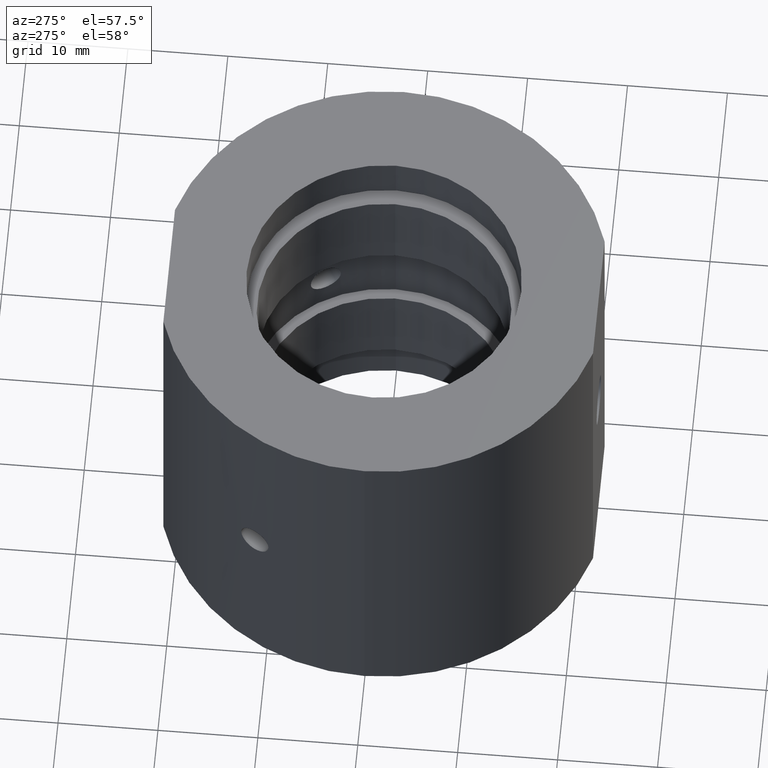
[diagram: clean part render]
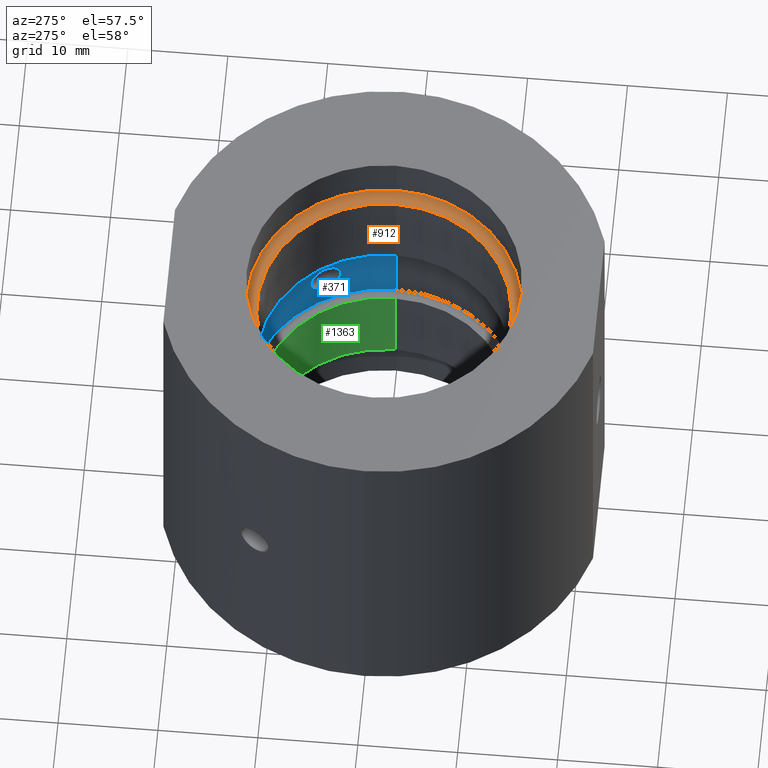
[diagram: same view with three faces highlighted in distinct colors, each labeled with its STEP entity id]
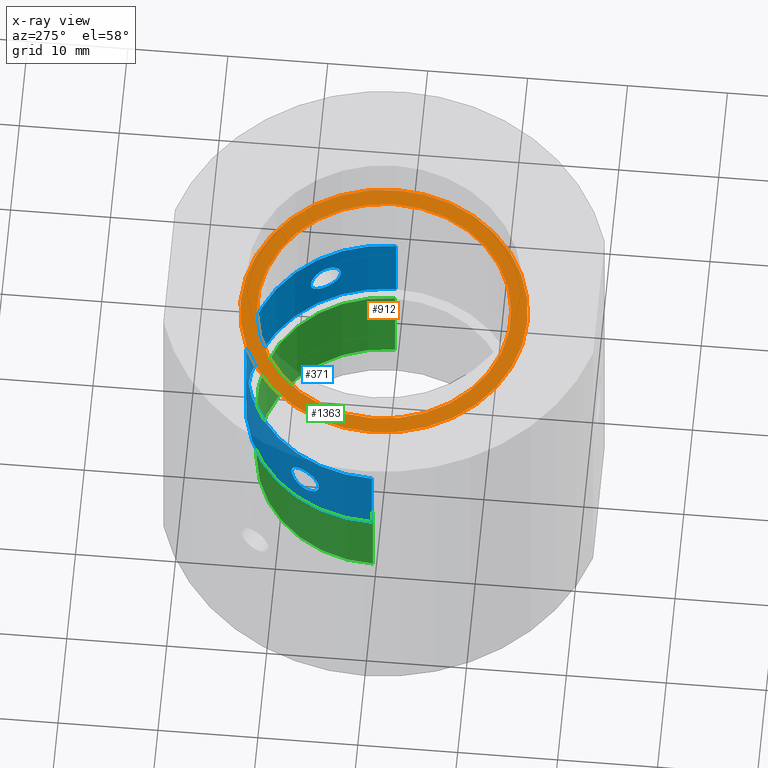
[diagram: x-ray of the same camera — body ghosted, the three highlighted faces saturated]
A machine part, auxiliary view with three faces highlighted in distinct colors.
The next image is the same camera in x-ray (body ghosted, the three faces saturated) — at least one of them is partly hidden behind the body in this view.
Their STEP definitions:

[orange] entity #912 — the highlighted planar face has unit normal (-0, 0, -1).
#20 = FACE_BOUND ( 'NONE', #1256, .T. ) ;
#59 = CARTESIAN_POINT ( 'NONE',  ( 5.564680930534238900E-015, 0.0000000000000000000, 13.49999999999999800 ) ) ;
#73 = CARTESIAN_POINT ( 'NONE',  ( 5.564680930534238900E-015, 0.0000000000000000000, 13.49999999999999800 ) ) ;
#78 = VERTEX_POINT ( 'NONE', #1077 ) ;
#82 = VERTEX_POINT ( 'NONE', #754 ) ;
#166 = CARTESIAN_POINT ( 'NONE',  ( 14.35000000000000700, 1.757368156776452000E-015, 13.49999999999999600 ) ) ;
#293 = DIRECTION ( 'NONE',  ( -1.000000000000000000, 0.0000000000000000000, 1.224646799147350500E-016 ) ) ;
#318 = AXIS2_PLACEMENT_3D ( 'NONE', #332, #1217, #1327 ) ;
#332 = CARTESIAN_POINT ( 'NONE',  ( 5.564680930534238900E-015, 0.0000000000000000000, 13.49999999999999800 ) ) ;
#343 = AXIS2_PLACEMENT_3D ( 'NONE', #964, #1410, #293 ) ;
#385 = EDGE_CURVE ( 'NONE', #1209, #82, #1014, .T. ) ;
#400 = CIRCLE ( 'NONE', #415, 12.69999999999999400 ) ;
#415 = AXIS2_PLACEMENT_3D ( 'NONE', #59, #819, #1165 ) ;
#442 = EDGE_CURVE ( 'NONE', #82, #1209, #1242, .T. ) ;
#471 = ORIENTED_EDGE ( 'NONE', *, *, #876, .T. ) ;
#473 = FACE_OUTER_BOUND ( 'NONE', #475, .T. ) ;
#475 = EDGE_LOOP ( 'NONE', ( #930, #582 ) ) ;
#484 = DIRECTION ( 'NONE',  ( -1.224646799147350500E-016, -0.0000000000000000000, -1.000000000000000000 ) ) ;
#582 = ORIENTED_EDGE ( 'NONE', *, *, #385, .F. ) ;
#695 = VERTEX_POINT ( 'NONE', #1120 ) ;
#713 = DIRECTION ( 'NONE',  ( -1.000000000000000000, 0.0000000000000000000, 1.208866533781746900E-016 ) ) ;
#754 = CARTESIAN_POINT ( 'NONE',  ( -14.34999999999999600, 0.0000000000000000000, 13.50000000000000000 ) ) ;
#819 = DIRECTION ( 'NONE',  ( -1.224646799147350500E-016, -0.0000000000000000000, -1.000000000000000000 ) ) ;
#839 = DIRECTION ( 'NONE',  ( -1.000000000000000000, 0.0000000000000000000, 1.208866533781746900E-016 ) ) ;
#876 = EDGE_CURVE ( 'NONE', #695, #78, #1196, .T. ) ;
#912 = ADVANCED_FACE ( 'NONE', ( #473, #20 ), #1167, .F. ) ;
#930 = ORIENTED_EDGE ( 'NONE', *, *, #442, .F. ) ;
#964 = CARTESIAN_POINT ( 'NONE',  ( 14.35000000000000700, 0.0000000000000000000, 13.49999999999999800 ) ) ;
#1014 = CIRCLE ( 'NONE', #1258, 14.35000000000000100 ) ;
#1059 = CARTESIAN_POINT ( 'NONE',  ( 5.564680930534238900E-015, 0.0000000000000000000, 13.49999999999999800 ) ) ;
#1065 = AXIS2_PLACEMENT_3D ( 'NONE', #73, #1279, #839 ) ;
#1077 = CARTESIAN_POINT ( 'NONE',  ( 12.69999999999999900, 1.555301434917138000E-015, 13.49999999999999600 ) ) ;
#1107 = EDGE_CURVE ( 'NONE', #78, #695, #400, .T. ) ;
#1120 = CARTESIAN_POINT ( 'NONE',  ( -12.69999999999998900, 0.0000000000000000000, 13.50000000000000000 ) ) ;
#1130 = ORIENTED_EDGE ( 'NONE', *, *, #1107, .T. ) ;
#1165 = DIRECTION ( 'NONE',  ( -1.000000000000000000, 0.0000000000000000000, 1.365923996832132100E-016 ) ) ;
#1167 = PLANE ( 'NONE',  #343 ) ;
#1196 = CIRCLE ( 'NONE', #318, 12.69999999999999400 ) ;
#1209 = VERTEX_POINT ( 'NONE', #166 ) ;
#1217 = DIRECTION ( 'NONE',  ( -1.224646799147350500E-016, -0.0000000000000000000, -1.000000000000000000 ) ) ;
#1242 = CIRCLE ( 'NONE', #1065, 14.35000000000000100 ) ;
#1256 = EDGE_LOOP ( 'NONE', ( #471, #1130 ) ) ;
#1258 = AXIS2_PLACEMENT_3D ( 'NONE', #1059, #484, #713 ) ;
#1279 = DIRECTION ( 'NONE',  ( -1.224646799147350500E-016, -0.0000000000000000000, -1.000000000000000000 ) ) ;
#1327 = DIRECTION ( 'NONE',  ( -1.000000000000000000, 0.0000000000000000000, 1.365923996832132100E-016 ) ) ;
#1410 = DIRECTION ( 'NONE',  ( -1.224646799147350500E-016, 0.0000000000000000000, -1.000000000000000000 ) ) ;

[blue] entity #371 — the highlighted cylindrical surface (partial cylindrical patch) has radius 13.8 mm, axis along (-0, -0, -1).
#37 = EDGE_CURVE ( 'NONE', #1011, #1023, #480, .T. ) ;
#43 = CARTESIAN_POINT ( 'NONE',  ( 11.84246082646134500, 7.085708189196815000, -1.639442169646431600 ) ) ;
#58 = ORIENTED_EDGE ( 'NONE', *, *, #670, .F. ) ;
#60 = CARTESIAN_POINT ( 'NONE',  ( -11.73161736998546300, 7.267761988135760900, 1.597104979727878500 ) ) ;
#67 = CARTESIAN_POINT ( 'NONE',  ( 11.41236232505669300, 7.760237835615871700, 1.319010299474441900 ) ) ;
#79 = CARTESIAN_POINT ( 'NONE',  ( -12.69041718609166500, 5.421559890192988900, -0.2181969559783588600 ) ) ;
#81 = CARTESIAN_POINT ( 'NONE',  ( -12.66948912460239300, 5.470328330509072900, 0.4274375880616333400 ) ) ;
#87 = CARTESIAN_POINT ( 'NONE',  ( -11.73151076834093600, 7.267928407362954400, -1.597025805361052700 ) ) ;
#91 = EDGE_CURVE ( 'NONE', #1409, #377, #1337, .T. ) ;
#131 = DIRECTION ( 'NONE',  ( -1.224646799147350500E-016, -0.0000000000000000000, -1.000000000000000000 ) ) ;
#175 = CARTESIAN_POINT ( 'NONE',  ( -11.17119024601776700, 8.102352273911824600, 0.8279945058443860500 ) ) ;
#180 = CARTESIAN_POINT ( 'NONE',  ( -12.60658063396151200, 5.614357607456468300, -0.8317791632924140800 ) ) ;
#185 = CARTESIAN_POINT ( 'NONE',  ( -11.84175227357072800, 7.086897312880872800, 1.639284038825114600 ) ) ;
#188 = CARTESIAN_POINT ( 'NONE',  ( -12.05763370887847700, 6.713017824439285500, -1.639442169646431400 ) ) ;
#189 = EDGE_CURVE ( 'NONE', #814, #1163, #239, .T. ) ;
#204 = CARTESIAN_POINT ( 'NONE',  ( -11.56812022841176100, 7.525196773665024700, -1.482219487789618700 ) ) ;
#214 = CARTESIAN_POINT ( 'NONE',  ( 11.84311372391394100, 7.087106407200626500, 1.649920950399101200 ) ) ;
#225 = ORIENTED_EDGE ( 'NONE', *, *, #91, .T. ) ;
#229 = AXIS2_PLACEMENT_3D ( 'NONE', #1221, #131, #248 ) ;
#235 = CIRCLE ( 'NONE', #229, 13.79999999999999900 ) ;
#239 = B_SPLINE_CURVE_WITH_KNOTS ( 'NONE', 3,
 ( #305, #412, #1173, #831, #826, #933, #1388, #727, #940, #67, #837, #648, #214, #975, #853, #1087, #545, #1301, #654, #1081, #1193, #525, #426, #537, #752, #1434, #1428, #1189, #965, #757 ),
 .UNSPECIFIED., .F., .F.,
 ( 4, 2, 2, 2, 2, 2, 2, 2, 2, 2, 2, 2, 2, 2, 4 ),
 ( 0.0000000000000000000, 0.0003227041672852673400, 0.0006454083345705347800, 0.0009681125018558022800, 0.001290816669141069300, 0.001936225003711604100, 0.002581633338282139100, 0.002904337505567405100, 0.003227041672852671500, 0.003549745840137937500, 0.003872450007423203900, 0.004195154174708470300, 0.004517858341993735900, 0.004840562509279002300, 0.005163266676564267800 ),
 .UNSPECIFIED. ) ;
#240 = VERTEX_POINT ( 'NONE', #531 ) ;
#242 = EDGE_CURVE ( 'NONE', #1163, #814, #895, .T. ) ;
#248 = DIRECTION ( 'NONE',  ( -1.000000000000000000, 0.0000000000000000000, 1.257045997084642900E-016 ) ) ;
#259 = CARTESIAN_POINT ( 'NONE',  ( 11.06711911405191300, 8.244134954036415100, -0.4349746048804413700 ) ) ;
#269 = VECTOR ( 'NONE', #1061, 1000.000000000000000 ) ;
#279 = CARTESIAN_POINT ( 'NONE',  ( 11.89721154883474000, 6.993443994132972500, -1.650078890480417600 ) ) ;
#291 = CARTESIAN_POINT ( 'NONE',  ( 0.0000000000000000000, 0.0000000000000000000, -31.93906810035839800 ) ) ;
#296 = CARTESIAN_POINT ( 'NONE',  ( -11.36812884929779200, 7.823775498395772100, -1.242031053582700400 ) ) ;
#305 = CARTESIAN_POINT ( 'NONE',  ( 11.04041718609165400, 8.279443722681621800, 0.0000000000000000000 ) ) ;
#313 = CARTESIAN_POINT ( 'NONE',  ( -12.55628377030791800, 5.727394963333223300, -1.015588174746518700 ) ) ;
#317 = CARTESIAN_POINT ( 'NONE',  ( 12.69041718609166100, 5.421559890192998700, -0.2154200070615440200 ) ) ;
#333 = CYLINDRICAL_SURFACE ( 'NONE', #890, 13.79999999999999900 ) ;
#371 = ADVANCED_FACE ( 'NONE', ( #767, #1332, #397 ), #333, .F. ) ;
#377 = VERTEX_POINT ( 'NONE', #1148 ) ;
#390 = CARTESIAN_POINT ( 'NONE',  ( 12.55687869949568000, 5.726086242826907500, -1.013742397284361100 ) ) ;
#392 = CARTESIAN_POINT ( 'NONE',  ( -11.04041718609165200, 8.279443722681614700, 2.020667241819048400E-016 ) ) ;
#397 = FACE_BOUND ( 'NONE', #678, .T. ) ;
#398 = CARTESIAN_POINT ( 'NONE',  ( -11.89759371864150900, 6.992772603358254500, 1.650039358680196700 ) ) ;
#401 = CARTESIAN_POINT ( 'NONE',  ( -12.16317275866340900, 6.522018558214159400, 1.606516200613365800 ) ) ;
#404 = EDGE_LOOP ( 'NONE', ( #818, #58, #811, #667 ) ) ;
#405 = CARTESIAN_POINT ( 'NONE',  ( -11.04041718609165200, 8.279443722681614700, 0.1077356894393030300 ) ) ;
#412 = CARTESIAN_POINT ( 'NONE',  ( 11.04041718609165600, 8.279443722681625300, 0.1091244950111333000 ) ) ;
#418 = CARTESIAN_POINT ( 'NONE',  ( -12.65681554836521100, 5.499705288396029300, 0.5322898322034443900 ) ) ;
#426 = CARTESIAN_POINT ( 'NONE',  ( 12.55303684588406600, 5.732789009649990500, 1.006620521538027500 ) ) ;
#441 = CARTESIAN_POINT ( 'NONE',  ( 13.80000000000000200, 1.690012582823347300E-015, -4.000000000000005300 ) ) ;
#449 = CARTESIAN_POINT ( 'NONE',  ( -12.42674426758080000, 6.003276772883722000, 1.319010299474443000 ) ) ;
#463 = B_SPLINE_CURVE_WITH_KNOTS ( 'NONE', 3,
 ( #1154, #1398, #516, #740, #1288, #296, #1403, #1076, #204, #1169, #87, #1420, #644, #968, #188, #758, #1430, #951, #843, #1396, #838, #313, #180, #514, #79, #857 ),
 .UNSPECIFIED., .F., .F.,
 ( 4, 2, 2, 2, 2, 2, 2, 2, 2, 2, 2, 2, 4 ),
 ( 0.005163266676564267800, 0.005808521135482889300, 0.006453775594401510800, 0.006776402823860818900, 0.007099030053320127900, 0.007421657282779436900, 0.007744284512238745900, 0.008066911741698054900, 0.008389538971157363100, 0.008712166200616672900, 0.009034793430075981100, 0.009680047888994599100, 0.01032530234791321700 ),
 .UNSPECIFIED. ) ;
#467 = EDGE_CURVE ( 'NONE', #377, #1409, #463, .T. ) ;
#477 = CARTESIAN_POINT ( 'NONE',  ( 12.15996601783330900, 6.525822146472593000, -1.597025805361052400 ) ) ;
#479 = CARTESIAN_POINT ( 'NONE',  ( 11.04041718609165400, 8.279443722681621800, 0.0000000000000000000 ) ) ;
#480 = CIRCLE ( 'NONE', #1232, 13.79999999999999900 ) ;
#481 = CARTESIAN_POINT ( 'NONE',  ( 12.20915934680473600, 6.433227817021452700, -1.565198561344145000 ) ) ;
#507 = CARTESIAN_POINT ( 'NONE',  ( -11.24125933983507900, 8.004854298352796600, 1.006620521538026800 ) ) ;
#512 = CARTESIAN_POINT ( 'NONE',  ( -11.04695368196574100, 8.270747655953558200, 0.2171759097929723000 ) ) ;
#514 = CARTESIAN_POINT ( 'NONE',  ( -12.67318985944868900, 5.462338822459195800, -0.4349746048804421000 ) ) ;
#516 = CARTESIAN_POINT ( 'NONE',  ( -11.06673650051888600, 8.244645989341265100, -0.4326587689230578200 ) ) ;
#519 = CARTESIAN_POINT ( 'NONE',  ( -11.51612233821216900, 7.604402885009841700, 1.431508513077951900 ) ) ;
#522 = VECTOR ( 'NONE', #976, 1000.000000000000000 ) ;
#523 = CARTESIAN_POINT ( 'NONE',  ( -12.68618613364430000, 5.431494095046012700, 0.2164055394547460300 ) ) ;
#525 = CARTESIAN_POINT ( 'NONE',  ( 12.52450847833041300, 5.795054640661200000, 1.089880020423987600 ) ) ;
#528 = CARTESIAN_POINT ( 'NONE',  ( -12.60272838600978500, 5.622709194601356800, 0.8268173552813927700 ) ) ;
#531 = CARTESIAN_POINT ( 'NONE',  ( 13.80000000000000600, 1.690012582823347700E-015, 3.999999999999994700 ) ) ;
#533 = DIRECTION ( 'NONE',  ( -1.224646799147350500E-016, -0.0000000000000000000, -1.000000000000000000 ) ) ;
#537 = CARTESIAN_POINT ( 'NONE',  ( 12.60243802262708400, 5.623358406604531900, 0.8279945058443867200 ) ) ;
#545 = CARTESIAN_POINT ( 'NONE',  ( 12.20819058999461100, 6.435067433155796700, 1.565907637400633800 ) ) ;
#546 = CARTESIAN_POINT ( 'NONE',  ( -12.69041718609166100, 5.421559890192988900, 0.0000000000000000000 ) ) ;
#562 = CARTESIAN_POINT ( 'NONE',  ( -13.79999999999999500, 0.0000000000000000000, 3.999999999999998200 ) ) ;
#587 = CARTESIAN_POINT ( 'NONE',  ( 11.41716912775323000, 7.752182168816248400, -1.313046120417442600 ) ) ;
#598 = CARTESIAN_POINT ( 'NONE',  ( 11.36908021025199600, 7.822393749325378600, -1.243495880286136900 ) ) ;
#599 = EDGE_LOOP ( 'NONE', ( #225, #989 ) ) ;
#609 = CARTESIAN_POINT ( 'NONE',  ( 12.45965275976585000, 5.933200627788884200, -1.242031053582699100 ) ) ;
#619 = CARTESIAN_POINT ( 'NONE',  ( -11.14052801894798300, 8.144345880212650700, 0.7314797505211870800 ) ) ;
#623 = DIRECTION ( 'NONE',  ( -1.000000000000000000, 0.0000000000000000000, 0.0000000000000000000 ) ) ;
#626 = CARTESIAN_POINT ( 'NONE',  ( -11.07239737271457300, 8.236653984517078100, 0.4288191318660321000 ) ) ;
#640 = CARTESIAN_POINT ( 'NONE',  ( 12.69041718609166100, 5.421559890192995100, 2.020667241819541500E-016 ) ) ;
#644 = CARTESIAN_POINT ( 'NONE',  ( -11.89599534085756200, 6.995512589302975900, -1.649920237112184200 ) ) ;
#648 = CARTESIAN_POINT ( 'NONE',  ( 11.72982013469866100, 7.272607320514398800, 1.606516200613366200 ) ) ;
#654 = CARTESIAN_POINT ( 'NONE',  ( 12.34366724813622300, 6.171053055476383200, 1.431508513077951500 ) ) ;
#667 = ORIENTED_EDGE ( 'NONE', *, *, #37, .T. ) ;
#670 = EDGE_CURVE ( 'NONE', #796, #240, #235, .T. ) ;
#678 = EDGE_LOOP ( 'NONE', ( #845, #1124 ) ) ;
#714 = CARTESIAN_POINT ( 'NONE',  ( 12.42292834944899500, 6.009900775617216700, -1.311711350918919500 ) ) ;
#718 = CARTESIAN_POINT ( 'NONE',  ( 12.69041718609166100, 5.421559890192995100, 2.020667241819541500E-016 ) ) ;
#727 = CARTESIAN_POINT ( 'NONE',  ( 11.24101693629786400, 8.005195793761462400, 1.006115467235067000 ) ) ;
#740 = CARTESIAN_POINT ( 'NONE',  ( -11.16478968970942500, 8.111369517290915700, -0.8298117093296958300 ) ) ;
#752 = CARTESIAN_POINT ( 'NONE',  ( 12.62347443894522800, 5.575807335875076400, 0.7314797505211878500 ) ) ;
#757 = CARTESIAN_POINT ( 'NONE',  ( 12.69041718609166100, 5.421559890192995100, 2.020667241819541500E-016 ) ) ;
#758 = CARTESIAN_POINT ( 'NONE',  ( -12.15889852995167400, 6.527811693596954800, -1.597631005396222200 ) ) ;
#767 = FACE_OUTER_BOUND ( 'NONE', #404, .T. ) ;
#768 = DIRECTION ( 'NONE',  ( -1.000000000000000000, 0.0000000000000000000, 1.257045997084642900E-016 ) ) ;
#796 = VERTEX_POINT ( 'NONE', #562 ) ;
#799 = CARTESIAN_POINT ( 'NONE',  ( 12.34370332181641000, 6.170984071546983300, -1.431484405791591600 ) ) ;
#811 = ORIENTED_EDGE ( 'NONE', *, *, #1299, .T. ) ;
#814 = VERTEX_POINT ( 'NONE', #479 ) ;
#818 = ORIENTED_EDGE ( 'NONE', *, *, #881, .F. ) ;
#821 = DIRECTION ( 'NONE',  ( -1.224646799147350500E-016, -0.0000000000000000000, -1.000000000000000000 ) ) ;
#826 = CARTESIAN_POINT ( 'NONE',  ( 11.09129226726111900, 8.211271151700239900, 0.5322898322034448300 ) ) ;
#831 = CARTESIAN_POINT ( 'NONE',  ( 11.07218786356369500, 8.236935269621916700, 0.4274375880616333400 ) ) ;
#837 = CARTESIAN_POINT ( 'NONE',  ( 11.51552671865767700, 7.607374187107065000, 1.441907820033669500 ) ) ;
#838 = CARTESIAN_POINT ( 'NONE',  ( -12.45893181044631600, 5.934715405078581100, -1.243495880286136700 ) ) ;
#842 = CARTESIAN_POINT ( 'NONE',  ( -11.36922800013134700, 7.822188031046588100, 1.243835453706864500 ) ) ;
#843 = CARTESIAN_POINT ( 'NONE',  ( -12.34281057643839200, 6.172771366606285800, -1.432639877429401100 ) ) ;
#845 = ORIENTED_EDGE ( 'NONE', *, *, #189, .T. ) ;
#853 = CARTESIAN_POINT ( 'NONE',  ( 12.05830924375181600, 6.711809637794066100, 1.639284038825114600 ) ) ;
#857 = CARTESIAN_POINT ( 'NONE',  ( -12.69041718609166100, 5.421559890192988900, 0.0000000000000000000 ) ) ;
#881 = EDGE_CURVE ( 'NONE', #240, #1023, #1369, .T. ) ;
#890 = AXIS2_PLACEMENT_3D ( 'NONE', #291, #821, #623 ) ;
#895 = B_SPLINE_CURVE_WITH_KNOTS ( 'NONE', 3,
 ( #640, #317, #1199, #1418, #390, #609, #714, #799, #914, #481, #477, #1030, #1374, #279, #43, #1037, #1156, #1045, #1244, #587, #598, #1367, #1357, #259, #1248, #1144 ),
 .UNSPECIFIED., .F., .F.,
 ( 4, 2, 2, 2, 2, 2, 2, 2, 2, 2, 2, 2, 4 ),
 ( 0.005163266676564267800, 0.005808521135482888400, 0.006453775594401509100, 0.006776402823860818100, 0.007099030053320127100, 0.007421657282779436100, 0.007744284512238745100, 0.008066911741698053200, 0.008389538971157363100, 0.008712166200616672900, 0.009034793430075981100, 0.009680047888994597300, 0.01032530234791321400 ),
 .UNSPECIFIED. ) ;
#914 = CARTESIAN_POINT ( 'NONE',  ( 12.30107168867643400, 6.255687605004835600, -1.482219487789617300 ) ) ;
#933 = CARTESIAN_POINT ( 'NONE',  ( 11.14070250737169600, 8.144107423578892800, 0.7320769633791588400 ) ) ;
#940 = CARTESIAN_POINT ( 'NONE',  ( 11.28151403963143400, 7.948161249592462100, 1.090929841863968400 ) ) ;
#950 = CARTESIAN_POINT ( 'NONE',  ( -11.28091877429662800, 7.949015191817227200, 1.089880020423986700 ) ) ;
#951 = CARTESIAN_POINT ( 'NONE',  ( -12.30012385227133900, 6.257551831468026300, -1.483249615255546300 ) ) ;
#965 = CARTESIAN_POINT ( 'NONE',  ( 12.69041718609166700, 5.421559890192996900, 0.1077356894393037600 ) ) ;
#968 = CARTESIAN_POINT ( 'NONE',  ( -12.00510593328016500, 6.806565438422117300, -1.650078890480416200 ) ) ;
#975 = CARTESIAN_POINT ( 'NONE',  ( 12.00471557671678400, 6.807232102570704800, 1.650039358680196500 ) ) ;
#976 = DIRECTION ( 'NONE',  ( -1.224646799147350500E-016, -0.0000000000000000000, -1.000000000000000000 ) ) ;
#989 = ORIENTED_EDGE ( 'NONE', *, *, #467, .T. ) ;
#1011 = VERTEX_POINT ( 'NONE', #1292 ) ;
#1023 = VERTEX_POINT ( 'NONE', #441 ) ;
#1030 = CARTESIAN_POINT ( 'NONE',  ( 12.05878093544714200, 6.710956011862209400, -1.639129378343053800 ) ) ;
#1037 = CARTESIAN_POINT ( 'NONE',  ( 11.73270002275185500, 7.266009162177053500, -1.597631005396222600 ) ) ;
#1045 = CARTESIAN_POINT ( 'NONE',  ( 11.56926077768475600, 7.523443810027989900, -1.483249615255546800 ) ) ;
#1051 = CARTESIAN_POINT ( 'NONE',  ( -11.41647890584518700, 7.753194589239143400, 1.312082474093366100 ) ) ;
#1056 = CARTESIAN_POINT ( 'NONE',  ( -11.09116956442081300, 8.211436661800858500, 0.5316847174193467500 ) ) ;
#1061 = DIRECTION ( 'NONE',  ( -1.224646799147350500E-016, -0.0000000000000000000, -1.000000000000000000 ) ) ;
#1070 = CARTESIAN_POINT ( 'NONE',  ( -13.79999999999999900, 0.0000000000000000000, -31.93906810035839800 ) ) ;
#1074 = CARTESIAN_POINT ( 'NONE',  ( -12.05917104991610400, 6.712884141217396700, 1.649920950399101000 ) ) ;
#1076 = CARTESIAN_POINT ( 'NONE',  ( -11.51608063321693700, 7.604468617697985000, -1.431484405791592800 ) ) ;
#1081 = CARTESIAN_POINT ( 'NONE',  ( 12.42270292768769300, 6.010363459611655300, 1.312082474093366100 ) ) ;
#1087 = CARTESIAN_POINT ( 'NONE',  ( 12.15987519537713600, 6.525997675818433500, 1.597104979727877800 ) ) ;
#1099 = CARTESIAN_POINT ( 'NONE',  ( -12.69041718609166100, 5.421559890192988900, 0.1091244950111333200 ) ) ;
#1124 = ORIENTED_EDGE ( 'NONE', *, *, #242, .T. ) ;
#1127 = CARTESIAN_POINT ( 'NONE',  ( -12.34594266145748700, 6.169051582762590700, 1.441907820033669200 ) ) ;
#1144 = CARTESIAN_POINT ( 'NONE',  ( 11.04041718609165400, 8.279443722681621800, 0.0000000000000000000 ) ) ;
#1148 = CARTESIAN_POINT ( 'NONE',  ( -11.04041718609165200, 8.279443722681614700, 2.020667241819048400E-016 ) ) ;
#1154 = CARTESIAN_POINT ( 'NONE',  ( -11.04041718609165200, 8.279443722681614700, 2.020667241819048400E-016 ) ) ;
#1156 = CARTESIAN_POINT ( 'NONE',  ( 11.67708461543620900, 7.354977674246630000, -1.565940812069239100 ) ) ;
#1163 = VERTEX_POINT ( 'NONE', #718 ) ;
#1168 = CARTESIAN_POINT ( 'NONE',  ( -11.56915488399086900, 7.523607221348379800, 1.483157504828361200 ) ) ;
#1169 = CARTESIAN_POINT ( 'NONE',  ( -11.67591839127558000, 7.356828244674501200, -1.565198561344145000 ) ) ;
#1171 = LINE ( 'NONE', #1070, #522 ) ;
#1173 = CARTESIAN_POINT ( 'NONE',  ( 11.04690493363709600, 8.270812421350955300, 0.2164055394547461400 ) ) ;
#1185 = CARTESIAN_POINT ( 'NONE',  ( -12.62335517365454500, 5.576077675599548500, 0.7320769633791588400 ) ) ;
#1189 = CARTESIAN_POINT ( 'NONE',  ( 12.68615441932920400, 5.431568695035717400, 0.2171759097929723500 ) ) ;
#1193 = CARTESIAN_POINT ( 'NONE',  ( 12.45882754813054300, 5.934946254007922300, 1.243835453706864800 ) ) ;
#1199 = CARTESIAN_POINT ( 'NONE',  ( 12.67344112223841900, 5.461751951767346300, -0.4326587689230567100 ) ) ;
#1203 = CARTESIAN_POINT ( 'NONE',  ( -12.69041718609166100, 5.421559890192988900, 0.0000000000000000000 ) ) ;
#1221 = CARTESIAN_POINT ( 'NONE',  ( 4.401266471344255700E-015, 0.0000000000000000000, 3.999999999999996400 ) ) ;
#1232 = AXIS2_PLACEMENT_3D ( 'NONE', #1445, #533, #768 ) ;
#1244 = CARTESIAN_POINT ( 'NONE',  ( 11.51718210345336000, 7.602801829991868500, -1.432639877429402500 ) ) ;
#1248 = CARTESIAN_POINT ( 'NONE',  ( 11.04041718609165600, 8.279443722681623500, -0.2181969559783586700 ) ) ;
#1288 = CARTESIAN_POINT ( 'NONE',  ( -11.23737550029644800, 8.011532824589613400, -1.013742397284363300 ) ) ;
#1292 = CARTESIAN_POINT ( 'NONE',  ( -13.79999999999999700, 0.0000000000000000000, -4.000000000000001800 ) ) ;
#1298 = CARTESIAN_POINT ( 'NONE',  ( -12.55321138781463500, 5.732408334324455600, 1.006115467235067000 ) ) ;
#1299 = EDGE_CURVE ( 'NONE', #796, #1011, #1171, .T. ) ;
#1301 = CARTESIAN_POINT ( 'NONE',  ( 12.30021242377912600, 6.257378419178835700, 1.483157504828360500 ) ) ;
#1323 = CARTESIAN_POINT ( 'NONE',  ( 13.79999999999999900, 1.690012582823347300E-015, -31.93906810035839800 ) ) ;
#1332 = FACE_BOUND ( 'NONE', #599, .T. ) ;
#1337 = B_SPLINE_CURVE_WITH_KNOTS ( 'NONE', 3,
 ( #1203, #1099, #523, #81, #418, #1185, #528, #1298, #1424, #449, #1127, #401, #1074, #398, #185, #60, #1401, #1168, #519, #1051, #842, #950, #507, #175, #619, #1056, #626, #512, #405, #392 ),
 .UNSPECIFIED., .F., .F.,
 ( 4, 2, 2, 2, 2, 2, 2, 2, 2, 2, 2, 2, 2, 2, 4 ),
 ( 0.0000000000000000000, 0.0003227041672852661400, 0.0006454083345705322900, 0.0009681125018557984900, 0.001290816669141065000, 0.001936225003711598500, 0.002581633338282131800, 0.002904337505567397300, 0.003227041672852662800, 0.003549745840137928400, 0.003872450007423193900, 0.004195154174708462500, 0.004517858341993730700, 0.004840562509278999700, 0.005163266676564267800 ),
 .UNSPECIFIED. ) ;
#1357 = CARTESIAN_POINT ( 'NONE',  ( 11.16546663096841200, 8.110440280139481900, -0.8317791632924146400 ) ) ;
#1367 = CARTESIAN_POINT ( 'NONE',  ( 11.23821142090750600, 8.010363240546407600, -1.015588174746520300 ) ) ;
#1369 = LINE ( 'NONE', #1323, #269 ) ;
#1374 = CARTESIAN_POINT ( 'NONE',  ( 12.00628928525895100, 6.804477873832598600, -1.649920237112184200 ) ) ;
#1388 = CARTESIAN_POINT ( 'NONE',  ( 11.17077319362193700, 8.102928341979161800, 0.8268173552813931100 ) ) ;
#1396 = CARTESIAN_POINT ( 'NONE',  ( -12.42217125683616500, 6.011467419529712000, -1.313046120417442200 ) ) ;
#1398 = CARTESIAN_POINT ( 'NONE',  ( -11.04041718609165200, 8.279443722681616400, -0.2154200070615446500 ) ) ;
#1401 = CARTESIAN_POINT ( 'NONE',  ( -11.67702716717607300, 7.355069468599679400, 1.565907637400634200 ) ) ;
#1403 = CARTESIAN_POINT ( 'NONE',  ( -11.41619092063272900, 7.753621152208211200, -1.311711350918920200 ) ) ;
#1409 = VERTEX_POINT ( 'NONE', #546 ) ;
#1418 = CARTESIAN_POINT ( 'NONE',  ( 12.60704690631131400, 5.613306740553605700, -0.8298117093296945000 ) ) ;
#1420 = CARTESIAN_POINT ( 'NONE',  ( -11.84124885767607600, 7.087732622837707600, -1.639129378343054300 ) ) ;
#1424 = CARTESIAN_POINT ( 'NONE',  ( -12.52406657533780000, 5.795997126675514400, 1.090929841863969200 ) ) ;
#1428 = CARTESIAN_POINT ( 'NONE',  ( 12.66935027913135100, 5.470650413308481700, 0.4288191318660322700 ) ) ;
#1430 = CARTESIAN_POINT ( 'NONE',  ( -12.20813981788300300, 6.435163081984996800, -1.565940812069238400 ) ) ;
#1434 = CARTESIAN_POINT ( 'NONE',  ( 12.65689753289678900, 5.499516269568905700, 0.5316847174193475300 ) ) ;
#1445 = CARTESIAN_POINT ( 'NONE',  ( 3.421549032026375300E-015, 0.0000000000000000000, -4.000000000000003600 ) ) ;

[green] entity #1363 — the highlighted cylindrical surface (partial cylindrical patch) has radius 12.7 mm, axis along (-0, -0, -1).
#7 = VERTEX_POINT ( 'NONE', #1008 ) ;
#17 = CARTESIAN_POINT ( 'NONE',  ( -12.70000000000000100, 0.0000000000000000000, -31.93906810035839800 ) ) ;
#122 = AXIS2_PLACEMENT_3D ( 'NONE', #1427, #1172, #1417 ) ;
#132 = CIRCLE ( 'NONE', #122, 12.70000000000000300 ) ;
#137 = VERTEX_POINT ( 'NONE', #719 ) ;
#156 = FACE_OUTER_BOUND ( 'NONE', #539, .T. ) ;
#178 = ORIENTED_EDGE ( 'NONE', *, *, #1000, .T. ) ;
#215 = DIRECTION ( 'NONE',  ( -1.000000000000000000, 0.0000000000000000000, 0.0000000000000000000 ) ) ;
#236 = CARTESIAN_POINT ( 'NONE',  ( -12.70000000000000100, 0.0000000000000000000, -13.50000000000000400 ) ) ;
#264 = CIRCLE ( 'NONE', #764, 12.69999999999999900 ) ;
#267 = EDGE_CURVE ( 'NONE', #7, #593, #1135, .T. ) ;
#302 = DIRECTION ( 'NONE',  ( -1.224646799147350500E-016, -0.0000000000000000000, -1.000000000000000000 ) ) ;
#382 = ORIENTED_EDGE ( 'NONE', *, *, #267, .F. ) ;
#421 = DIRECTION ( 'NONE',  ( -1.224646799147350500E-016, -0.0000000000000000000, -1.000000000000000000 ) ) ;
#505 = CARTESIAN_POINT ( 'NONE',  ( 12.70000000000000100, 1.555301434917138600E-015, -31.93906810035839800 ) ) ;
#529 = ORIENTED_EDGE ( 'NONE', *, *, #781, .T. ) ;
#538 = DIRECTION ( 'NONE',  ( -1.000000000000000000, 0.0000000000000000000, 1.365923996832131600E-016 ) ) ;
#539 = EDGE_LOOP ( 'NONE', ( #382, #722, #529, #178 ) ) ;
#557 = DIRECTION ( 'NONE',  ( -1.224646799147350500E-016, -0.0000000000000000000, -1.000000000000000000 ) ) ;
#593 = VERTEX_POINT ( 'NONE', #977 ) ;
#650 = CARTESIAN_POINT ( 'NONE',  ( 3.421549032026375300E-015, 0.0000000000000000000, -4.000000000000003600 ) ) ;
#655 = CARTESIAN_POINT ( 'NONE',  ( 0.0000000000000000000, 0.0000000000000000000, -31.93906810035839800 ) ) ;
#664 = VERTEX_POINT ( 'NONE', #236 ) ;
#719 = CARTESIAN_POINT ( 'NONE',  ( -12.69999999999999600, 0.0000000000000000000, -4.000000000000001800 ) ) ;
#722 = ORIENTED_EDGE ( 'NONE', *, *, #1318, .F. ) ;
#764 = AXIS2_PLACEMENT_3D ( 'NONE', #650, #421, #538 ) ;
#781 = EDGE_CURVE ( 'NONE', #137, #664, #1319, .T. ) ;
#952 = AXIS2_PLACEMENT_3D ( 'NONE', #655, #302, #215 ) ;
#977 = CARTESIAN_POINT ( 'NONE',  ( 12.70000000000000600, 1.555301434917139000E-015, -13.50000000000000700 ) ) ;
#1000 = EDGE_CURVE ( 'NONE', #664, #593, #132, .T. ) ;
#1008 = CARTESIAN_POINT ( 'NONE',  ( 12.70000000000000300, 1.555301434917138600E-015, -4.000000000000005300 ) ) ;
#1096 = VECTOR ( 'NONE', #557, 1000.000000000000000 ) ;
#1135 = LINE ( 'NONE', #505, #1348 ) ;
#1172 = DIRECTION ( 'NONE',  ( -1.224646799147350500E-016, -0.0000000000000000000, -1.000000000000000000 ) ) ;
#1262 = CYLINDRICAL_SURFACE ( 'NONE', #952, 12.70000000000000100 ) ;
#1265 = DIRECTION ( 'NONE',  ( -1.224646799147350500E-016, -0.0000000000000000000, -1.000000000000000000 ) ) ;
#1318 = EDGE_CURVE ( 'NONE', #137, #7, #264, .T. ) ;
#1319 = LINE ( 'NONE', #17, #1096 ) ;
#1348 = VECTOR ( 'NONE', #1265, 1000.000000000000000 ) ;
#1363 = ADVANCED_FACE ( 'NONE', ( #156 ), #1262, .F. ) ;
#1417 = DIRECTION ( 'NONE',  ( -1.000000000000000000, 0.0000000000000000000, 1.365923996832131400E-016 ) ) ;
#1427 = CARTESIAN_POINT ( 'NONE',  ( 2.258134572836392200E-015, 0.0000000000000000000, -13.50000000000000500 ) ) ;